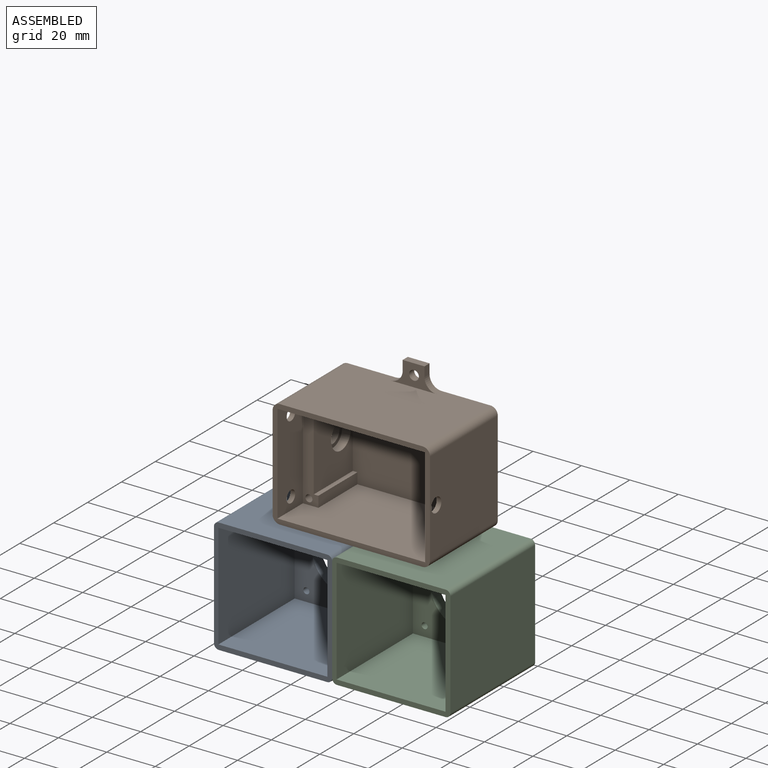
[diagram: assembled view]
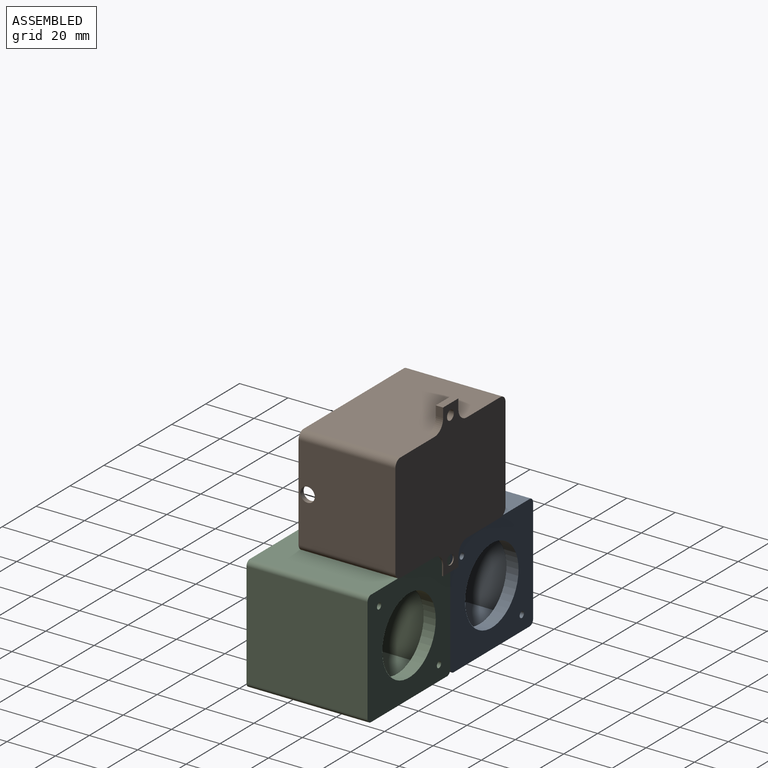
[diagram: assembled view, second angle]
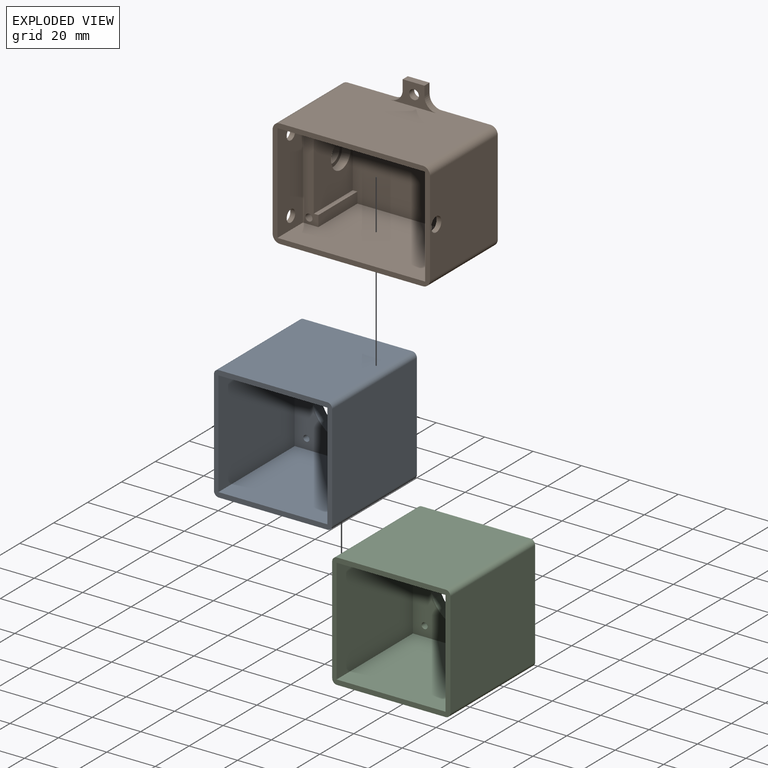
[diagram: exploded view]
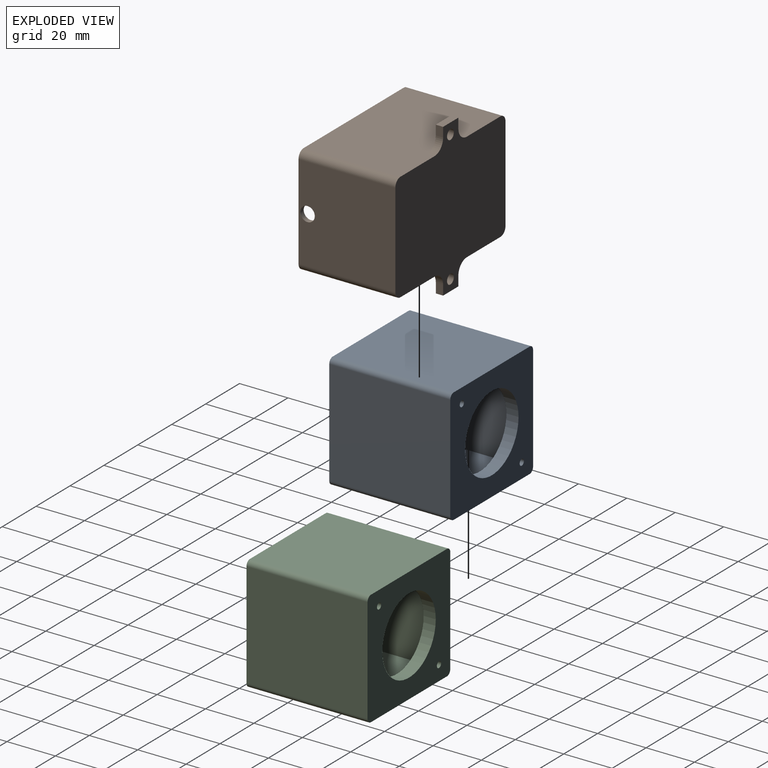
[diagram: exploded view, second angle]
ASSEMBLY  parts=3 mates=2
PART A: 18 faces, bbox 48.8x50x47.6 mm
  f0: plane 50x43.59mm, normal (-1,0,0), area 2179.4mm2, adj f8,f13,f14,f17
  f1: plane 50x44.84mm, normal (0,0,-1), area 2241.9mm2, adj f8,f13,f14,f15
  f2: plane 50x43.59mm, normal (1,0,0), area 2179.4mm2, adj f8,f13,f15,f16
  f3: cylinder r=1.25mm len=5mm, axis (0,1,0), area 39.3mm2, adj f7,f8
  f4: cylinder r=1.25mm len=5mm, axis (0,1,0), area 39.3mm2, adj f7,f8
  f5: cylinder r=15.75mm len=31.5mm, axis (0,1,0), area 494.8mm2, adj f7,f8
  f6: plane 50x44.84mm, normal (0,0,1), area 2241.9mm2, adj f8,f13,f16,f17
  f7: plane 45x43.59mm, normal (0,-1,0), area 1172.3mm2, adj f3,f4,f5,f9,f10,f11,f12
  f8: plane 48.84x47.59mm, normal (0,1,0), area 1531.5mm2, adj f0,f1,f2,f3,f4,f5,f6,f14
  f9: plane 45x45mm, normal (0,0,-1), area 2025mm2, adj f7,f10,f12,f13
  f10: plane 45x43.59mm, normal (-1,0,0), area 1961.5mm2, adj f7,f9,f11,f13
  f11: plane 45x45mm, normal (0,0,1), area 2025mm2, adj f7,f10,f12,f13
  f12: plane 45x43.59mm, normal (1,0,0), area 1961.5mm2, adj f7,f9,f11,f13
  f13: plane 48.84x47.59mm, normal (0,-1,0), area 359.2mm2, adj f0,f1,f2,f6,f9,f10,f11,f12
  f14: cylinder r=2mm len=50mm, axis (0,1,0), area 157.1mm2, adj f0,f1,f8,f13
  f15: cylinder r=2mm len=50mm, axis (0,-1,0), area 157.1mm2, adj f1,f2,f8,f13
  f16: cylinder r=2mm len=50mm, axis (0,1,0), area 157.1mm2, adj f2,f6,f8,f13
  f17: cylinder r=2mm len=50mm, axis (0,-1,0), area 157.1mm2, adj f0,f6,f8,f13
PART B: 61 faces, bbox 65x63x40 mm
  f0: plane 41x6.4mm, normal (0,0,1), area 185.1mm2, adj f2,f3,f4,f12,f13,f14,f21,f23
  f1: plane 14.23x5.15mm, normal (0,0,1), area 60.3mm2, adj f6,f7,f12,f18,f25,f49,f59
  f2: plane 23x1.17mm, normal (0,-1,0), area 26.8mm2, adj f0,f4,f20,f58
  f3: plane 23x1.9mm, normal (0,1,0), area 43.7mm2, adj f0,f4,f20,f56
  f4: plane 32x23mm, normal (1,0,0), area 631.4mm2, adj f0,f2,f3,f20,f54
  f5: cylinder r=4.25mm len=8.5mm, axis (-1,0,0), area 80.1mm2, adj f15,f55
  f6: plane 41x15mm, normal (-1,0,0), area 502.5mm2, adj f1,f8,f12,f13,f16,f49,f50,f53
  f7: plane 32x23mm, normal (-1,0,0), area 651.8mm2, adj f1,f8,f18,f19,f20,f49,f50,f52
  f8: plane 15.55x5.49mm, normal (0,0,1), area 67.8mm2, adj f6,f7,f13,f19,f27,f50,f57
  f9: plane 59x40mm, normal (0,1,0), area 2303mm2, adj f16,f17,f32,f33,f39,f47,f48
  f10: plane 59x40mm, normal (0,-1,0), area 2303mm2, adj f16,f17,f31,f34,f44,f45,f46
  f11: plane 40x39mm, normal (1,0,0), area 1531.7mm2, adj f16,f17,f31,f32,f60
  f12: plane 61x38mm, normal (0,-1,0), area 2069.3mm2, adj f0,f1,f6,f14,f16,f20,f58,f59
  f13: plane 61x38mm, normal (0,1,0), area 2044.4mm2, adj f0,f6,f8,f14,f16,f20,f56,f57
  f14: plane 41x15mm, normal (1,0,0), area 575.7mm2, adj f0,f12,f13,f16,f29,f30
  f15: plane 40x39mm, normal (-1,0,0), area 1464mm2, adj f5,f16,f17,f29,f30,f33,f34
  f16: plane 65x45mm, normal (0,0,1), area 416.3mm2, adj f6,f9,f10,f11,f12,f13,f14,f15
  f17: plane 65x63mm, normal (0,0,-1), area 3075.6mm2, adj f9,f10,f11,f15,f31,f32,f33,f34
  f18: plane 23x0.65mm, normal (0,-1,0), area 14.9mm2, adj f1,f7,f20,f59
  f19: plane 23x0.99mm, normal (0,1,0), area 22.9mm2, adj f7,f8,f20,f57
  f20: plane 52x41mm, normal (0,0,1), area 2110.8mm2, adj f2,f3,f4,f7,f12,f13,f18,f19
  f21: cylinder r=1.45mm len=10mm, axis (0,0,1), area 91.1mm2, adj f0,f22
  f22: plane 2.9x2.9mm, normal (0,0,1), area 6.6mm2, adj f21
  f23: cylinder r=1.45mm len=10mm, axis (0,0,1), area 91.1mm2, adj f0,f24
  f24: plane 2.9x2.9mm, normal (0,0,1), area 6.6mm2, adj f23
  f25: cylinder r=1.45mm len=10mm, axis (0,0,1), area 91.1mm2, adj f1,f26
  f26: plane 2.9x2.9mm, normal (0,0,1), area 6.6mm2, adj f25
  f27: cylinder r=1.45mm len=10mm, axis (0,0,1), area 91.1mm2, adj f8,f28
  f28: plane 2.9x2.9mm, normal (0,0,1), area 6.6mm2, adj f27
  f29: cylinder r=2.5mm len=5mm, axis (-1,0,0), area 31.4mm2, adj f14,f15
  f30: cylinder r=2.5mm len=5mm, axis (-1,0,0), area 31.4mm2, adj f14,f15
  f31: cylinder r=3mm len=40mm, axis (0,0,-1), area 188.5mm2, adj f10,f11,f16,f17
  f32: cylinder r=3mm len=40mm, axis (0,0,1), area 188.5mm2, adj f9,f11,f16,f17
  f33: cylinder r=3mm len=40mm, axis (0,0,-1), area 188.5mm2, adj f9,f15,f16,f17
  f34: cylinder r=3mm len=40mm, axis (0,0,1), area 188.5mm2, adj f10,f15,f16,f17
  f35: plane 4x3mm, normal (1,0,0), area 12mm2, adj f17,f38,f39,f48
  f36: plane 4x3mm, normal (-1,0,0), area 12mm2, adj f17,f38,f39,f47
  f37: cylinder r=2mm len=4mm, axis (0,0,-1), area 37.7mm2, adj f17,f39
  f38: plane 9x3mm, normal (0,1,0), area 27mm2, adj f17,f35,f36,f39
  f39: plane 19x9mm, normal (0,0,1), area 79.2mm2, adj f9,f35,f36,f37,f38,f47,f48
  f40: plane 4x3mm, normal (1,0,0), area 12mm2, adj f17,f41,f44,f45
  f41: plane 9x3mm, normal (0,-1,0), area 27mm2, adj f17,f40,f43,f44
  f42: cylinder r=2mm len=4mm, axis (0,0,-1), area 37.7mm2, adj f17,f44
  f43: plane 4x3mm, normal (-1,0,0), area 12mm2, adj f17,f41,f44,f46
  f44: plane 19x9mm, normal (0,0,1), area 79.2mm2, adj f10,f40,f41,f42,f43,f45,f46
  f45: cylinder r=5mm len=5mm, axis (0,0,1), area 23.6mm2, adj f10,f17,f40,f44
  f46: cylinder r=5mm len=5mm, axis (0,0,-1), area 23.6mm2, adj f10,f17,f43,f44
  f47: cylinder r=5mm len=5mm, axis (0,0,-1), area 23.6mm2, adj f9,f17,f36,f39
  f48: cylinder r=5mm len=5mm, axis (0,0,1), area 23.6mm2, adj f9,f17,f35,f39
  f49: plane 15x5.62mm, normal (0,-1,0), area 50.6mm2, adj f1,f6,f7,f51,f52,f53
  f50: plane 15x5.62mm, normal (0,1,0), area 50.6mm2, adj f6,f7,f8,f51,f52,f53
  f51: plane 15x11.23mm, normal (-1,0,0), area 168.4mm2, adj f49,f50,f52,f53
  f52: plane 11.23x5.62mm, normal (0,0,1), area 63.1mm2, adj f7,f49,f50,f51
  f53: plane 11.23x1.12mm, normal (0,0,-1), area 12.6mm2, adj f6,f49,f50,f51
  f54: cylinder r=5.77mm len=11.54mm, axis (1,0,0), area 126.9mm2, adj f4,f55
  f55: plane 11.54x11.54mm, normal (1,0,0), area 47.8mm2, adj f5,f54
  f56: plane 23x4.5mm, normal (1,0,0), area 103.5mm2, adj f0,f3,f13,f20
  f57: plane 23x4.5mm, normal (-1,0,0), area 103.5mm2, adj f8,f13,f19,f20
  f58: plane 23x4.5mm, normal (1,0,0), area 103.5mm2, adj f0,f2,f12,f20
  f59: plane 23x4.5mm, normal (-1,0,0), area 103.5mm2, adj f1,f12,f18,f20
  f60: cylinder r=3mm len=6mm, axis (1,0,0), area 37.7mm2, adj f6,f11
PART C: same geometry as A
PLACE A t=(9.26,34.77,-5.22)mm fixed
PLACE B rot(axis=(1,0,0),90deg) t=(34.34,35.23,41.08)mm
PLACE C t=(58.1,34.77,-5.22)mm fixed
MATE fastened A.f6 <-> B.f10  axis (0,0,1) through (9.34,9.77,18.58)mm
MATE fastened A.f2 <-> C.f0  axis (1,0,0) through (33.76,9.77,-5.22)mm
